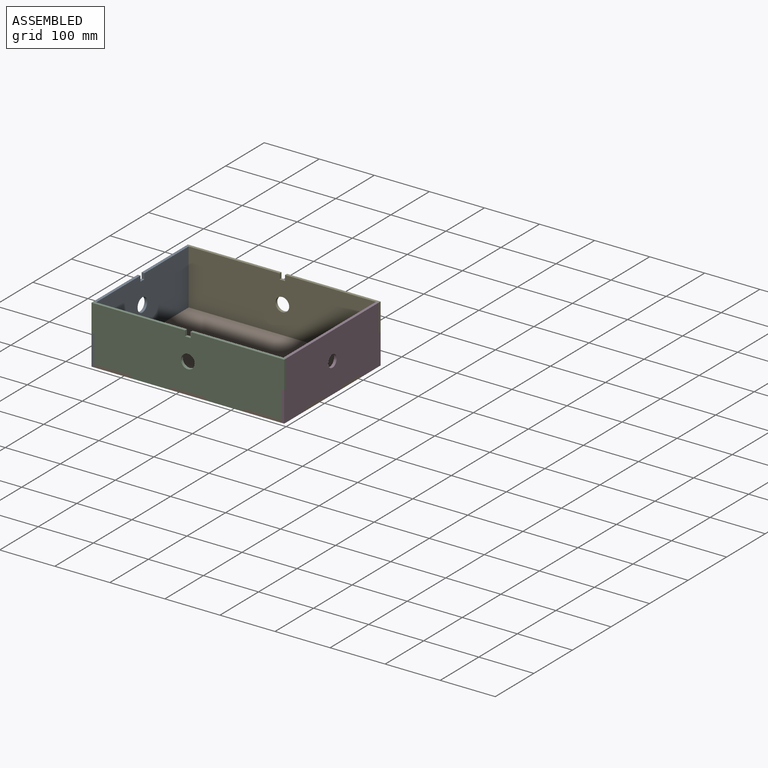
[diagram: assembled view]
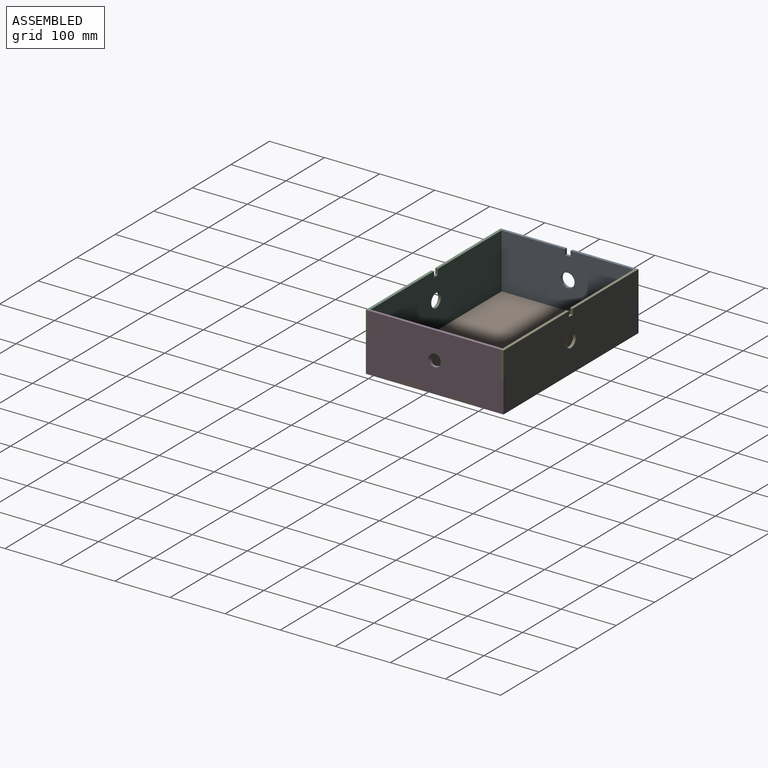
[diagram: assembled view, second angle]
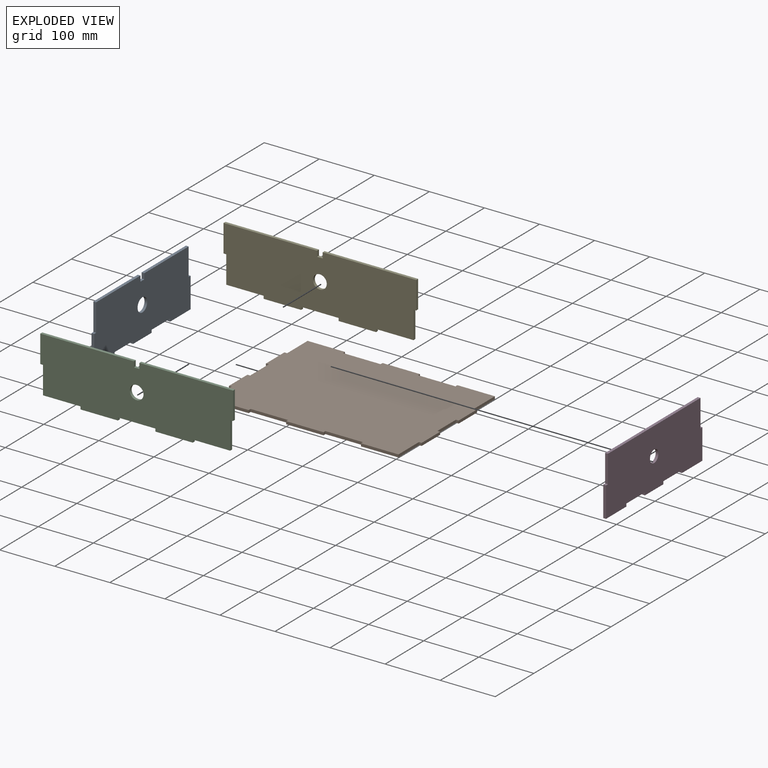
[diagram: exploded view]
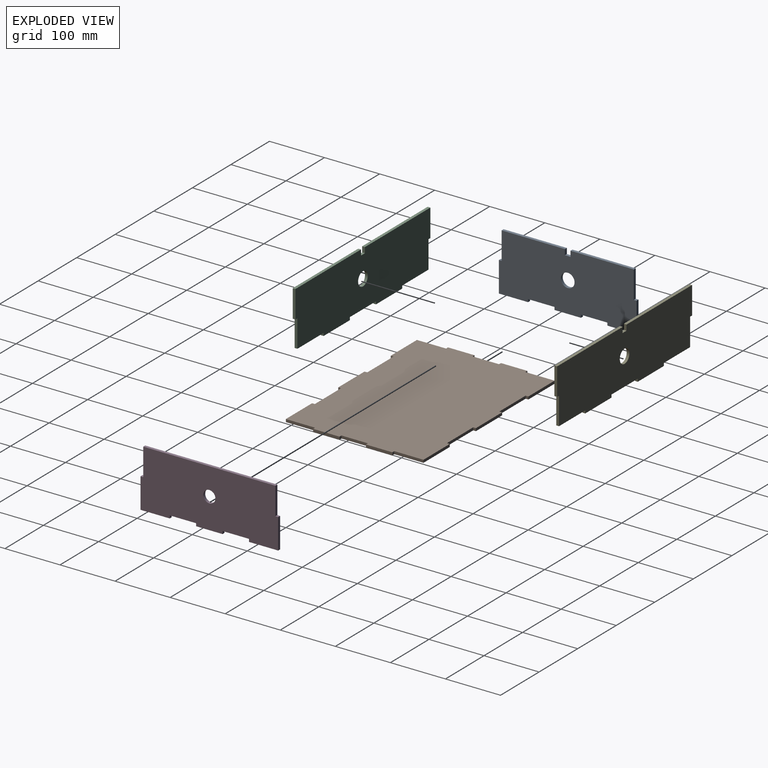
[diagram: exploded view, second angle]
ASSEMBLY  parts=5 mates=4
PART A: 23 faces, bbox 5x250x105 mm
  f0: plane 55x5mm, normal (0,1,0), area 275mm2, adj f1,f19,f21,f22
  f1: plane 5x5mm, normal (0,0,1), area 25mm2, adj f0,f2,f21,f22
  f2: plane 50x5mm, normal (0,1,0), area 250mm2, adj f1,f3,f21,f22
  f3: plane 115x5mm, normal (0,0,1), area 575mm2, adj f2,f4,f21,f22
  f4: plane 10x5mm, normal (0,-1,0), area 50mm2, adj f3,f5,f21,f22
  f5: plane 10x5mm, normal (0,0,1), area 50mm2, adj f4,f6,f21,f22
  f6: plane 10x5mm, normal (0,1,0), area 50mm2, adj f5,f7,f21,f22
  f7: plane 115x5mm, normal (0,0,1), area 575mm2, adj f6,f8,f21,f22
  f8: plane 50x5mm, normal (0,-1,0), area 250mm2, adj f7,f9,f21,f22
  f9: plane 5x5mm, normal (0,0,1), area 25mm2, adj f8,f10,f21,f22
  f10: plane 55x5mm, normal (0,-1,0), area 275mm2, adj f9,f11,f21,f22
  f11: plane 53x5mm, normal (0,0,-1), area 265mm2, adj f10,f12,f21,f22
  f12: plane 5x5mm, normal (0,1,0), area 25mm2, adj f11,f13,f21,f22
  f13: plane 48x5mm, normal (0,0,-1), area 240mm2, adj f12,f14,f21,f22
  f14: plane 5x5mm, normal (0,-1,0), area 25mm2, adj f13,f15,f21,f22
  f15: plane 48x5mm, normal (0,0,-1), area 240mm2, adj f14,f16,f21,f22
  f16: plane 5x5mm, normal (0,1,0), area 25mm2, adj f15,f17,f21,f22
  f17: plane 48x5mm, normal (0,0,-1), area 240mm2, adj f16,f18,f21,f22
  f18: plane 5x5mm, normal (0,-1,0), area 25mm2, adj f17,f19,f21,f22
  f19: plane 53x5mm, normal (0,0,-1), area 265mm2, adj f0,f18,f21,f22
  f20: cylinder r=12.5mm len=25mm, axis (-1,0,0), area 392.7mm2, adj f21,f22
  f21: plane 250x105mm, normal (1,0,0), area 24679.1mm2, adj f0,f1,f2,f3,f4,f5,f6,f7
  f22: plane 250x105mm, normal (-1,0,0), area 24679.1mm2, adj f0,f1,f2,f3,f4,f5,f6,f7
PART B: 38 faces, bbox 350x250x5 mm
  f0: plane 53x5mm, normal (1,0,0), area 265mm2, adj f1,f35,f36,f37
  f1: plane 5x5mm, normal (0,-1,0), area 25mm2, adj f0,f2,f36,f37
  f2: plane 48x5mm, normal (1,0,0), area 240mm2, adj f1,f3,f36,f37
  f3: plane 5x5mm, normal (0,1,0), area 25mm2, adj f2,f4,f36,f37
  f4: plane 48x5mm, normal (1,0,0), area 240mm2, adj f3,f5,f36,f37
  f5: plane 5x5mm, normal (0,-1,0), area 25mm2, adj f4,f6,f36,f37
  f6: plane 48x5mm, normal (1,0,0), area 240mm2, adj f5,f7,f36,f37
  f7: plane 5x5mm, normal (0,1,0), area 25mm2, adj f6,f8,f36,f37
  f8: plane 53x5mm, normal (1,0,0), area 265mm2, adj f7,f9,f36,f37
  f9: plane 68x5mm, normal (0,1,0), area 340mm2, adj f8,f10,f36,f37
  f10: plane 5x5mm, normal (-1,0,0), area 25mm2, adj f9,f11,f36,f37
  f11: plane 68x5mm, normal (0,1,0), area 340mm2, adj f10,f12,f36,f37
  f12: plane 5x5mm, normal (1,0,0), area 25mm2, adj f11,f13,f36,f37
  f13: plane 68x5mm, normal (0,1,0), area 340mm2, adj f12,f14,f36,f37
  f14: plane 5x5mm, normal (-1,0,0), area 25mm2, adj f13,f15,f36,f37
  f15: plane 68x5mm, normal (0,1,0), area 340mm2, adj f14,f16,f36,f37
  f16: plane 5x5mm, normal (1,0,0), area 25mm2, adj f15,f17,f36,f37
  f17: plane 68x5mm, normal (0,1,0), area 340mm2, adj f16,f18,f36,f37
  f18: plane 53x5mm, normal (-1,0,0), area 265mm2, adj f17,f19,f36,f37
  f19: plane 5x5mm, normal (0,1,0), area 25mm2, adj f18,f20,f36,f37
  f20: plane 48x5mm, normal (-1,0,0), area 240mm2, adj f19,f21,f36,f37
  f21: plane 5x5mm, normal (0,-1,0), area 25mm2, adj f20,f22,f36,f37
  f22: plane 48x5mm, normal (-1,0,0), area 240mm2, adj f21,f23,f36,f37
  f23: plane 5x5mm, normal (0,1,0), area 25mm2, adj f22,f24,f36,f37
  f24: plane 48x5mm, normal (-1,0,0), area 240mm2, adj f23,f25,f36,f37
  f25: plane 5x5mm, normal (0,-1,0), area 25mm2, adj f24,f26,f36,f37
  f26: plane 53x5mm, normal (-1,0,0), area 265mm2, adj f25,f27,f36,f37
  f27: plane 68x5mm, normal (0,-1,0), area 340mm2, adj f26,f28,f36,f37
  f28: plane 5x5mm, normal (1,0,0), area 25mm2, adj f27,f29,f36,f37
  f29: plane 68x5mm, normal (0,-1,0), area 340mm2, adj f28,f30,f36,f37
  f30: plane 5x5mm, normal (-1,0,0), area 25mm2, adj f29,f31,f36,f37
  f31: plane 68x5mm, normal (0,-1,0), area 340mm2, adj f30,f32,f36,f37
  f32: plane 5x5mm, normal (1,0,0), area 25mm2, adj f31,f33,f36,f37
  f33: plane 68x5mm, normal (0,-1,0), area 340mm2, adj f32,f34,f36,f37
  f34: plane 5x5mm, normal (-1,0,0), area 25mm2, adj f33,f35,f36,f37
  f35: plane 68x5mm, normal (0,-1,0), area 340mm2, adj f0,f34,f36,f37
  f36: plane 350x250mm, normal (0,0,1), area 84600mm2, adj f0,f1,f2,f3,f4,f5,f6,f7
  f37: plane 350x250mm, normal (0,0,-1), area 84600mm2, adj f0,f1,f2,f3,f4,f5,f6,f7
PART C: 23 faces, bbox 350x5x105 mm
  f0: plane 5x5mm, normal (-1,0,0), area 25mm2, adj f1,f19,f21,f22
  f1: plane 68x5mm, normal (0,0,-1), area 340mm2, adj f0,f2,f21,f22
  f2: plane 5x5mm, normal (1,0,0), area 25mm2, adj f1,f3,f21,f22
  f3: plane 68x5mm, normal (0,0,-1), area 340mm2, adj f2,f4,f21,f22
  f4: plane 50x5mm, normal (1,0,0), area 250mm2, adj f3,f5,f21,f22
  f5: plane 5x5mm, normal (0,0,-1), area 25mm2, adj f4,f6,f21,f22
  f6: plane 50x5mm, normal (1,0,0), area 250mm2, adj f5,f7,f21,f22
  f7: plane 170x5mm, normal (0,0,1), area 850mm2, adj f6,f8,f21,f22
  f8: plane 10x5mm, normal (-1,0,0), area 50mm2, adj f7,f9,f21,f22
  f9: plane 10x5mm, normal (0,0,1), area 50mm2, adj f8,f10,f21,f22
  f10: plane 10x5mm, normal (1,0,0), area 50mm2, adj f9,f11,f21,f22
  f11: plane 170x5mm, normal (0,0,1), area 850mm2, adj f10,f12,f21,f22
  f12: plane 50x5mm, normal (-1,0,0), area 250mm2, adj f11,f13,f21,f22
  f13: plane 5x5mm, normal (0,0,-1), area 25mm2, adj f12,f14,f21,f22
  f14: plane 50x5mm, normal (-1,0,0), area 250mm2, adj f13,f15,f21,f22
  f15: plane 68x5mm, normal (0,0,-1), area 340mm2, adj f14,f16,f21,f22
  f16: plane 5x5mm, normal (-1,0,0), area 25mm2, adj f15,f17,f21,f22
  f17: plane 68x5mm, normal (0,0,-1), area 340mm2, adj f16,f18,f21,f22
  f18: plane 5x5mm, normal (1,0,0), area 25mm2, adj f17,f19,f21,f22
  f19: plane 68x5mm, normal (0,0,-1), area 340mm2, adj f0,f18,f21,f22
  f20: cylinder r=12.5mm len=25mm, axis (0,1,0), area 392.7mm2, adj f21,f22
  f21: plane 350x105mm, normal (0,-1,0), area 34589.1mm2, adj f0,f1,f2,f3,f4,f5,f6,f7
  f22: plane 350x105mm, normal (0,1,0), area 34589.1mm2, adj f0,f1,f2,f3,f4,f5,f6,f7
PART D: 19 faces, bbox 5x250x105 mm
  f0: plane 55x5mm, normal (0,1,0), area 275mm2, adj f1,f15,f17,f18
  f1: plane 5x5mm, normal (0,0,1), area 25mm2, adj f0,f2,f17,f18
  f2: plane 50x5mm, normal (0,1,0), area 250mm2, adj f1,f3,f17,f18
  f3: plane 240x5mm, normal (0,0,1), area 1200mm2, adj f2,f4,f17,f18
  f4: plane 50x5mm, normal (0,-1,0), area 250mm2, adj f3,f5,f17,f18
  f5: plane 5x5mm, normal (0,0,1), area 25mm2, adj f4,f6,f17,f18
  f6: plane 55x5mm, normal (0,-1,0), area 275mm2, adj f5,f7,f17,f18
  f7: plane 53x5mm, normal (0,0,-1), area 265mm2, adj f6,f8,f17,f18
  f8: plane 5x5mm, normal (0,1,0), area 25mm2, adj f7,f9,f17,f18
  f9: plane 48x5mm, normal (0,0,-1), area 240mm2, adj f8,f10,f17,f18
  f10: plane 5x5mm, normal (0,-1,0), area 25mm2, adj f9,f11,f17,f18
  f11: plane 48x5mm, normal (0,0,-1), area 240mm2, adj f10,f12,f17,f18
  f12: plane 5x5mm, normal (0,1,0), area 25mm2, adj f11,f13,f17,f18
  f13: plane 48x5mm, normal (0,0,-1), area 240mm2, adj f12,f14,f17,f18
  f14: plane 5x5mm, normal (0,-1,0), area 25mm2, adj f13,f15,f17,f18
  f15: plane 53x5mm, normal (0,0,-1), area 265mm2, adj f0,f14,f17,f18
  f16: cylinder r=11mm len=22mm, axis (-1,0,0), area 345.6mm2, adj f17,f18
  f17: plane 250x105mm, normal (1,0,0), area 24889.9mm2, adj f0,f1,f2,f3,f4,f5,f6,f7
  f18: plane 250x105mm, normal (-1,0,0), area 24889.9mm2, adj f0,f1,f2,f3,f4,f5,f6,f7
PART E: same geometry as C
PLACE A t=(-550.1,-279.8,-54.39)mm
PLACE B t=(-375.1,-279.8,-109.39)mm
PLACE C t=(-375.1,-399.8,-54.39)mm
PLACE D t=(-205.1,-279.8,-54.39)mm
PLACE E t=(-375.1,-154.8,-54.39)mm
MATE fastened D.f18 <-> B.f4  axis (-1,0,0) through (-205.1,-279.8,-109.39)mm
MATE fastened C.f22 <-> B.f33  axis (0,1,0) through (-307.1,-399.8,-109.39)mm
MATE fastened E.f21 <-> B.f15  axis (0,-1,0) through (-443.1,-159.8,-109.39)mm
MATE fastened A.f21 <-> B.f22  axis (1,0,0) through (-545.1,-279.8,-109.39)mm
